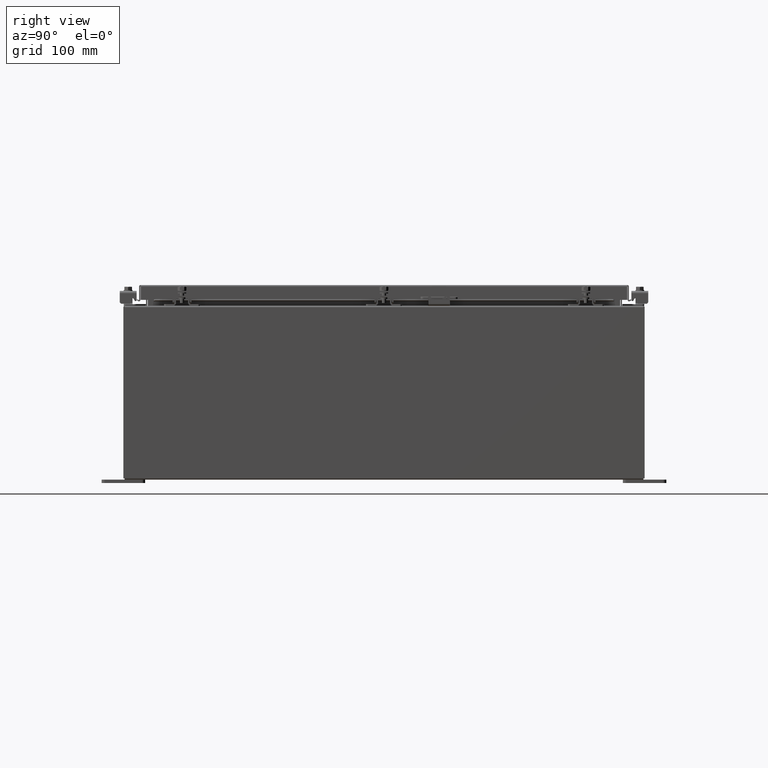
[diagram: clean part render]
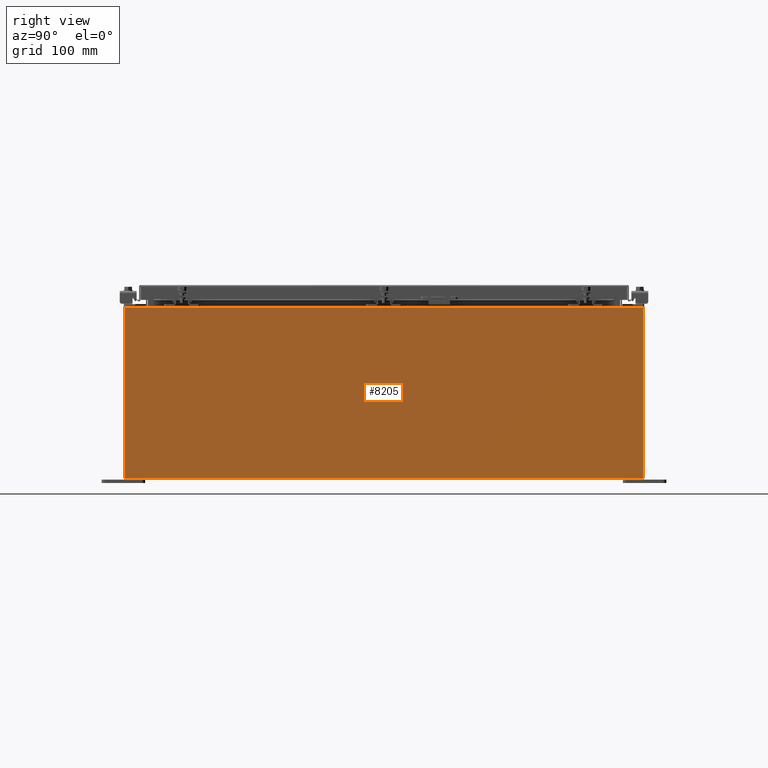
[diagram: same view with one face highlighted and labeled with its STEP entity id]
A machine part, right view. The second image highlights one B-rep face of the part: STEP entity #8205.
In plain terms, the highlighted planar face has unit normal (-1, 0, 0).
Its self-contained STEP definition (entity closure, byte-faithful):
#869 = DIRECTION ( 'NONE',  ( -3.523082860860888200E-015, -2.201926788038054900E-016, -1.000000000000000000 ) ) ;
#1023 = LINE ( 'NONE', #4131, #30047 ) ;
#3199 = CARTESIAN_POINT ( 'NONE',  ( 11.99999999999999600, -14.92530000000000000, 0.01299999999999997500 ) ) ;
#3854 = VECTOR ( 'NONE', #8589, 39.37007874015748100 ) ;
#3879 = VECTOR ( 'NONE', #20415, 39.37007874015748100 ) ;
#4131 = CARTESIAN_POINT ( 'NONE',  ( 11.99999999999999600, -14.92530000000000000, -3.925136619739177700E-014 ) ) ;
#5047 = DIRECTION ( 'NONE',  ( -0.0000000000000000000, -1.000000000000000000, -0.0000000000000000000 ) ) ;
#5392 = CARTESIAN_POINT ( 'NONE',  ( 12.00000000000003200, 14.92529999999999800, 9.837599999999994800 ) ) ;
#7018 = VECTOR ( 'NONE', #5047, 39.37007874015748100 ) ;
#7943 = LINE ( 'NONE', #11422, #7018 ) ;
#8205 = ADVANCED_FACE ( 'NONE', ( #16949 ), #12359, .F. ) ;
#8589 = DIRECTION ( 'NONE',  ( 3.523082860860888200E-015, -2.201926788038055100E-016, 1.000000000000000000 ) ) ;
#11249 = CARTESIAN_POINT ( 'NONE',  ( 11.99999999999999600, 14.92529999999999800, 0.01299999999999766100 ) ) ;
#11422 = CARTESIAN_POINT ( 'NONE',  ( 12.00000000000003200, 14.92529999999999800, 9.837599999999994800 ) ) ;
#11629 = LINE ( 'NONE', #20217, #3879 ) ;
#11965 = DIRECTION ( 'NONE',  ( 3.523082860860887800E-015, 0.0000000000000000000, 1.000000000000000000 ) ) ;
#12086 = DIRECTION ( 'NONE',  ( -1.000000000000000000, 0.0000000000000000000, 3.523082860860887800E-015 ) ) ;
#12195 = CARTESIAN_POINT ( 'NONE',  ( 12.00000000000003200, -14.92529999999999800, 9.837600000000001900 ) ) ;
#12312 = CARTESIAN_POINT ( 'NONE',  ( 11.99999999999999600, 0.0000000000000000000, -4.253780798634221600E-014 ) ) ;
#12359 = PLANE ( 'NONE',  #31906 ) ;
#14467 = ORIENTED_EDGE ( 'NONE', *, *, #16074, .T. ) ;
#15193 = ORIENTED_EDGE ( 'NONE', *, *, #17034, .T. ) ;
#15531 = EDGE_CURVE ( 'NONE', #19982, #29499, #11629, .T. ) ;
#16074 = EDGE_CURVE ( 'NONE', #32552, #33965, #7943, .T. ) ;
#16949 = FACE_OUTER_BOUND ( 'NONE', #35156, .T. ) ;
#17034 = EDGE_CURVE ( 'NONE', #33965, #29499, #1023, .T. ) ;
#17219 = CARTESIAN_POINT ( 'NONE',  ( 11.99999999999999600, 14.92530000000000000, -3.925136619739177700E-014 ) ) ;
#17572 = ORIENTED_EDGE ( 'NONE', *, *, #15531, .F. ) ;
#19982 = VERTEX_POINT ( 'NONE', #11249 ) ;
#20217 = CARTESIAN_POINT ( 'NONE',  ( 11.99999999999999600, -14.92529999999999800, 0.01299999999999984700 ) ) ;
#20353 = ORIENTED_EDGE ( 'NONE', *, *, #22149, .T. ) ;
#20415 = DIRECTION ( 'NONE',  ( 2.579385833438731400E-031, -1.000000000000000000, 7.321388497823869400E-017 ) ) ;
#22149 = EDGE_CURVE ( 'NONE', #19982, #32552, #36406, .T. ) ;
#29499 = VERTEX_POINT ( 'NONE', #3199 ) ;
#30047 = VECTOR ( 'NONE', #869, 39.37007874015748100 ) ;
#31906 = AXIS2_PLACEMENT_3D ( 'NONE', #12312, #12086, #11965 ) ;
#32552 = VERTEX_POINT ( 'NONE', #5392 ) ;
#33965 = VERTEX_POINT ( 'NONE', #12195 ) ;
#35156 = EDGE_LOOP ( 'NONE', ( #14467, #15193, #17572, #20353 ) ) ;
#36406 = LINE ( 'NONE', #17219, #3854 ) ;